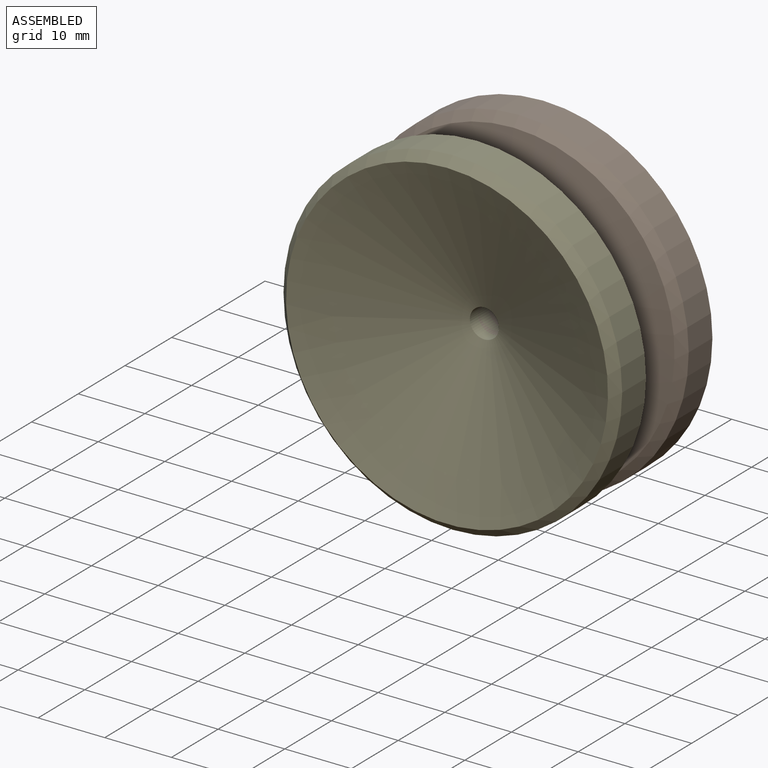
[diagram: assembled view]
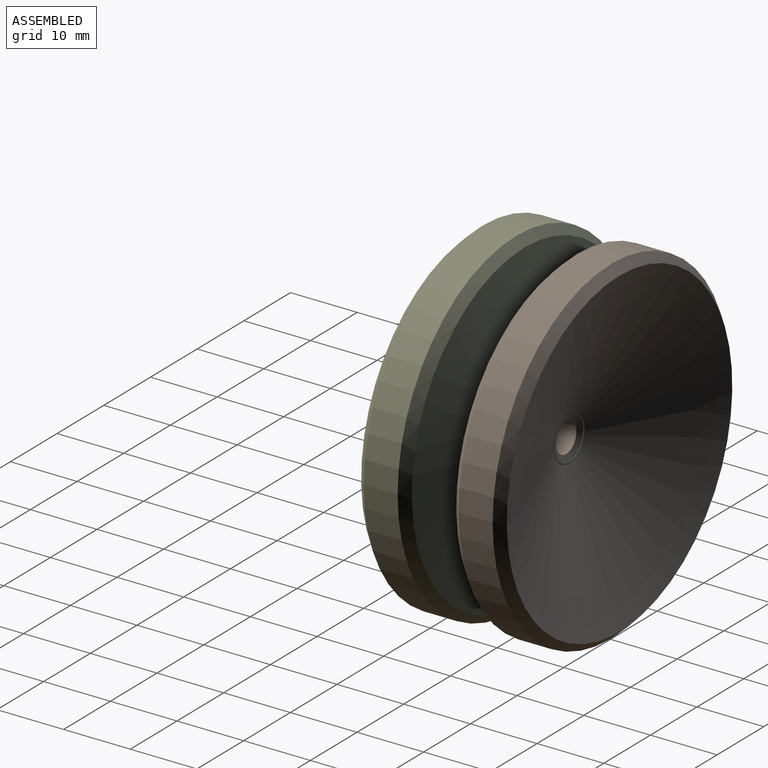
[diagram: assembled view, second angle]
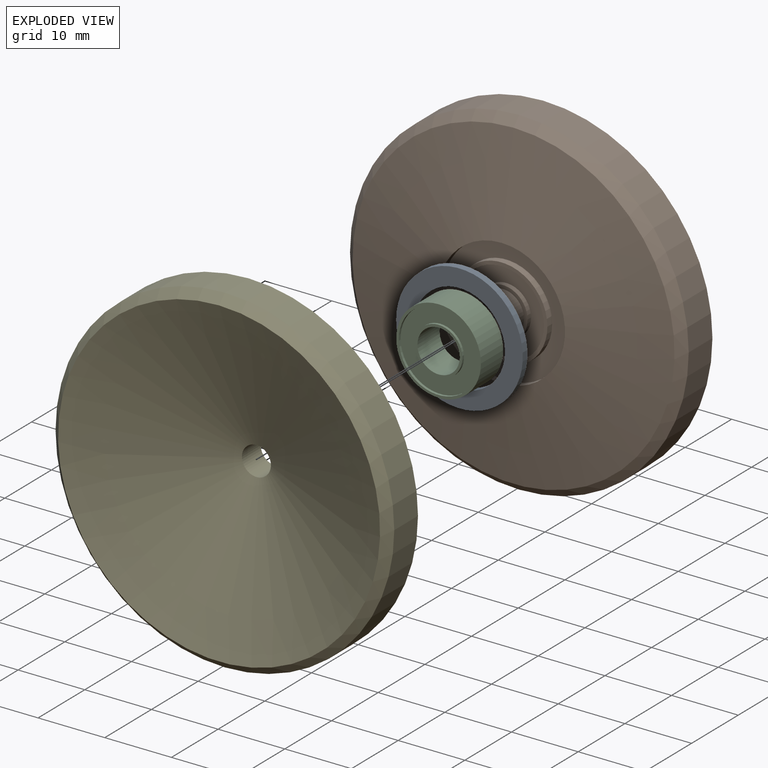
[diagram: exploded view]
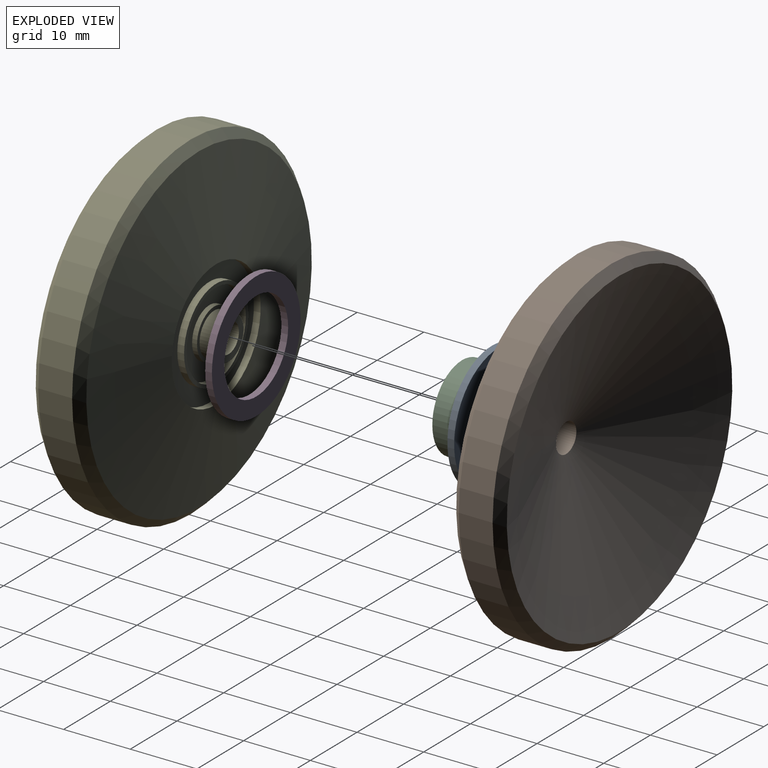
[diagram: exploded view, second angle]
ASSEMBLY  parts=5 mates=4
PART A: 4 faces, bbox 1x19x19 mm
  f0: cylinder r=6.83mm len=13.67mm, axis (-1,0,0), area 43.6mm2, adj f2,f3
  f1: cylinder r=9.5mm len=19mm, axis (-1,0,0), area 60.6mm2, adj f2,f3
  f2: plane 19x19mm, normal (1,0,0), area 136.8mm2, adj f0,f1
  f3: plane 19x19mm, normal (-1,0,0), area 136.8mm2, adj f0,f1
PART B: 16 faces, bbox 50.8x12x50.8 mm
  f0: cone r=24.15mm half-angle=70deg, axis (0,1,0), area 1933.9mm2, adj f1,f15
  f1: cone r=25.4mm half-angle=45deg, axis (0,-1,0), area 275.3mm2, adj f0,f2
  f2: cylinder r=25.4mm len=50.8mm, axis (0,1,0), area 810.7mm2, adj f1,f3
  f3: cone r=24.15mm half-angle=45deg, axis (0,1,0), area 275.3mm2, adj f2,f4
  f4: cone r=9.53mm half-angle=80deg, axis (0,1,0), area 1571mm2, adj f3,f6
  f5: cylinder r=6.88mm len=13.77mm, axis (0,-1,0), area 43.9mm2, adj f7,f8
  f6: cylinder r=9.53mm len=19.05mm, axis (0,-1,0), area 60.8mm2, adj f4,f7
  f7: plane 19.05x19.05mm, normal (0,-1,0), area 136.2mm2, adj f5,f6
  f8: plane 13.77x13.77mm, normal (0,-1,0), area 22.2mm2, adj f5,f9
  f9: cylinder r=6.35mm len=12.7mm, axis (0,-1,0), area 40.5mm2, adj f8,f10
  f10: plane 12.7x12.7mm, normal (0,-1,0), area 83.5mm2, adj f9,f11
  f11: cylinder r=3.71mm len=7.42mm, axis (0,1,0), area 17.2mm2, adj f10,f12
  f12: plane 7.42x7.42mm, normal (0,-1,0), area 11.5mm2, adj f11,f13
  f13: cylinder r=3.17mm len=6.35mm, axis (0,1,0), area 43.1mm2, adj f12,f14
  f14: plane 6.35x6.35mm, normal (0,-1,0), area 16.8mm2, adj f13,f15
  f15: cylinder r=2.17mm len=4.35mm, axis (0,-1,0), area 55.2mm2, adj f0,f14
PART C: 12 faces, bbox 4.8x12.7x12.7 mm
  f0: plane 7.11x7.11mm, normal (-1,0,0), area 8.1mm2, adj f5,f9
  f1: plane 7.11x7.11mm, normal (1,0,0), area 8.1mm2, adj f5,f6
  f2: cylinder r=6.35mm len=12.7mm, axis (-1,0,0), area 189.5mm2, adj f3,f4
  f3: plane 12.7x12.7mm, normal (1,0,0), area 14.7mm2, adj f2,f7
  f4: plane 12.7x12.7mm, normal (-1,0,0), area 14.7mm2, adj f2,f10
  f5: cylinder r=3.17mm len=6.35mm, axis (1,0,0), area 94.8mm2, adj f0,f1
  f6: cylinder r=3.56mm len=7.11mm, axis (1,0,0), area 8.5mm2, adj f1,f8
  f7: cylinder r=5.97mm len=11.94mm, axis (1,0,0), area 14.3mm2, adj f3,f8
  f8: plane 11.94x11.94mm, normal (1,0,0), area 72.2mm2, adj f6,f7
  f9: cylinder r=3.56mm len=7.11mm, axis (-1,0,0), area 8.5mm2, adj f0,f11
  f10: cylinder r=5.97mm len=11.94mm, axis (-1,0,0), area 14.3mm2, adj f4,f11
  f11: plane 11.94x11.94mm, normal (-1,0,0), area 72.2mm2, adj f9,f10
PART D: same geometry as A
PART E: same geometry as B
PLACE A rot(axis=(-0.58,0.58,-0.58),120deg) t=(-38.23,-16.53,12.99)mm
PLACE B t=(-38.23,-17.55,12.99)mm
PLACE C rot(axis=(-0.58,-0.58,0.58),120deg) t=(-38.23,-19.72,12.99)mm
PLACE D rot(axis=(-0.58,-0.58,0.58),120deg) t=(-38.23,-20.08,12.99)mm
PLACE E rot(axis=(0,0,1),180deg) t=(-38.23,-19.06,12.99)mm
MATE fastened D.f1 <-> E.f4  axis (0,-1,0) through (-38.23,-20.08,12.99)mm
MATE fastened C.f2 <-> B.f6  axis (0,1,0) through (-38.23,-14.97,12.99)mm
MATE fastened C.f5 <-> E.f11  axis (0,-1,0) through (-38.23,-19.34,12.99)mm
MATE fastened A.f0 <-> B.f6  axis (0,1,0) through (-38.23,-16.53,12.99)mm
